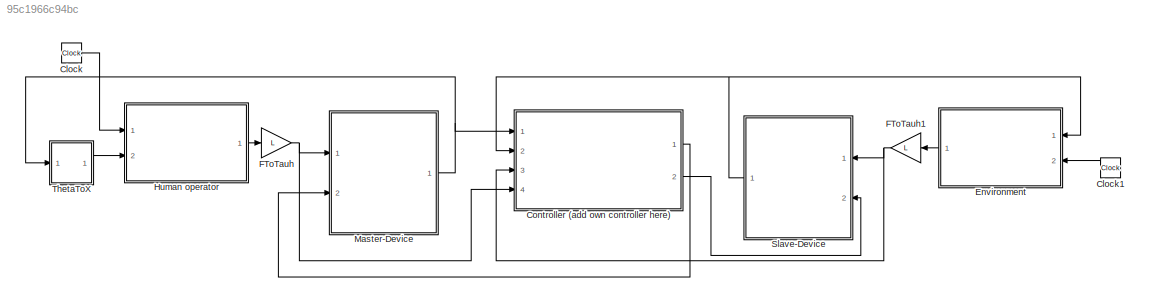
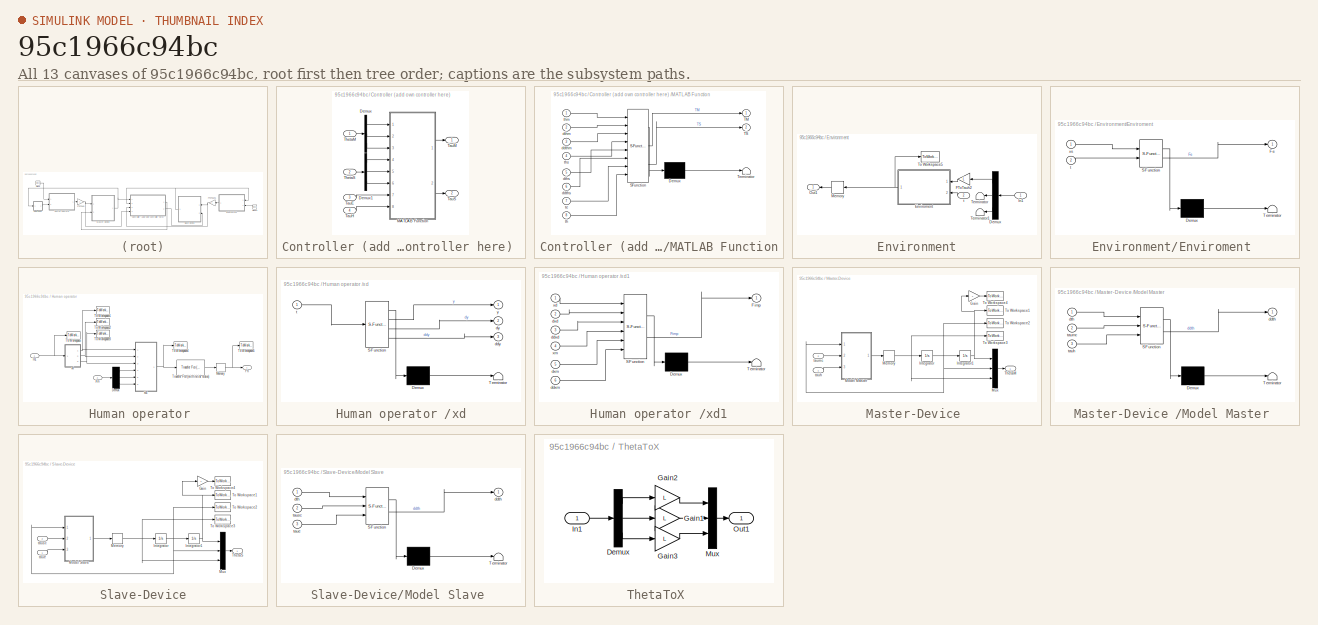
[diagram: thumbnail index - all 13 canvases of the model, root first then tree order]
MODEL slx_95c1966c94bc
KIND model
CONFIG AbsTol = auto
CONFIG EnableMultiTasking = off
CONFIG FixedStep = dt
CONFIG MaxStep = auto
CONFIG MinStep = auto
CONFIG RelTol = 1e-3
CONFIG SampleTimeConstraint = Unconstrained
CONFIG Solver = ode4
CONFIG SolverName = ode4
CONFIG StartTime = 0.0
CONFIG StopTime = tsim
BLOCK [Clock] Clock
BLOCK [Clock] Clock1
BLOCK [SubSystem] Controller (add own controller here) 
  Ports = [4, 2]
  RequestExecContextInheritance = off
BLOCK [Demux] Controller (add own controller here) /Demux
  Outputs = 3
  Ports = [1, 3]
BLOCK [Demux] Controller (add own controller here) /Demux1
  Outputs = 3
  Ports = [1, 3]
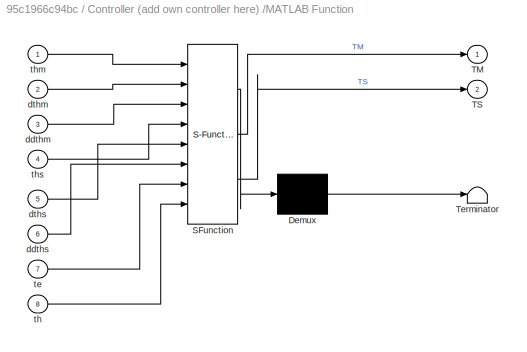
BLOCK [SubSystem] Controller (add own controller here) /MATLAB Function
  ErrorFcn = Stateflow.Translate.translate
  PermitHierarchicalResolution = ExplicitOnly
  Ports = [8, 2]
  RequestExecContextInheritance = off
  SFBlockType = MATLAB Function
  TreatAsAtomicUnit = on
BLOCK [Demux] Controller (add own controller here) /MATLAB Function/ Demux 
  Outputs = 1
  Ports = [1, 1]
BLOCK [S-Function] Controller (add own controller here) /MATLAB Function/ SFunction 
  EnableBusSupport = on
  FunctionName = sf_sfun
  Parameters = Kd,Kp,OPTION
  PortCounts = [8 3]
  Ports = [8, 3]
  SFcnIsStateOwnerBlock = off
  SFunctionDeploymentMode = off
  Tag = Stateflow S-Function 6
BLOCK [Terminator] Controller (add own controller here) /MATLAB Function/ Terminator 
BLOCK [Outport] Controller (add own controller here) /MATLAB Function/TM
  VectorParamsAs1DForOutWhenUnconnected = off
BLOCK [Outport] Controller (add own controller here) /MATLAB Function/TS
  Port = 2
  VectorParamsAs1DForOutWhenUnconnected = off
BLOCK [Inport] Controller (add own controller here) /MATLAB Function/ddthm
  Port = 3
BLOCK [Inport] Controller (add own controller here) /MATLAB Function/ddths
  Port = 6
BLOCK [Inport] Controller (add own controller here) /MATLAB Function/dthm
  Port = 2
BLOCK [Inport] Controller (add own controller here) /MATLAB Function/dths
  Port = 5
BLOCK [Inport] Controller (add own controller here) /MATLAB Function/te
  Port = 7
BLOCK [Inport] Controller (add own controller here) /MATLAB Function/th
  Port = 8
BLOCK [Inport] Controller (add own controller here) /MATLAB Function/thm
BLOCK [Inport] Controller (add own controller here) /MATLAB Function/ths
  Port = 4
BLOCK [Inport] Controller (add own controller here) /TauE 
  Port = 3
BLOCK [Inport] Controller (add own controller here) /TauH 
  Port = 4
BLOCK [Outport] Controller (add own controller here) /TauM
  VectorParamsAs1DForOutWhenUnconnected = off
BLOCK [Outport] Controller (add own controller here) /TauS 
  Port = 2
  VectorParamsAs1DForOutWhenUnconnected = off
BLOCK [Inport] Controller (add own controller here) /ThetaM 
BLOCK [Inport] Controller (add own controller here) /ThetaS 
  Port = 2
BLOCK [SubSystem] Environment
  Ports = [2, 1]
  RequestExecContextInheritance = off
BLOCK [Demux] Environment/Demux
  Outputs = 3
  Ports = [1, 3]
BLOCK [SubSystem] Environment/Enviroment 
  ErrorFcn = Stateflow.Translate.translate
  PermitHierarchicalResolution = ExplicitOnly
  Ports = [2, 1]
  RequestExecContextInheritance = off
  SFBlockType = MATLAB Function
  TreatAsAtomicUnit = on
BLOCK [Demux] Environment/Enviroment / Demux 
  Outputs = 1
  Ports = [1, 1]
BLOCK [S-Function] Environment/Enviroment / SFunction 
  EnableBusSupport = on
  FunctionName = sf_sfun
  Parameters = ke
  PortCounts = [2 2]
  Ports = [2, 2]
  SFcnIsStateOwnerBlock = off
  SFunctionDeploymentMode = off
  Tag = Stateflow S-Function 5
BLOCK [Terminator] Environment/Enviroment / Terminator 
BLOCK [Outport] Environment/Enviroment /Fe
  VectorParamsAs1DForOutWhenUnconnected = off
BLOCK [Inport] Environment/Enviroment /t
  Port = 2
BLOCK [Inport] Environment/Enviroment /xs
BLOCK [Gain] Environment/FToTauh2
  Gain = L
BLOCK [Inport] Environment/In1
BLOCK [Memory] Environment/Memory
BLOCK [Outport] Environment/Out1
  VectorParamsAs1DForOutWhenUnconnected = off
BLOCK [Terminator] Environment/Terminator
BLOCK [Terminator] Environment/Terminator1
BLOCK [ToWorkspace] Environment/To Workspace5
  FixptAsFi = on
  MaxDataPoints = inf
  Ports = [1]
  SampleTime = -1
  VariableName = Fe
BLOCK [Inport] Environment/t
  Port = 2
BLOCK [Gain] FToTauh
  Gain = L
BLOCK [Gain] FToTauh1
  Gain = L
BLOCK [SubSystem] Human operator 
  Ports = [2, 1]
  RequestExecContextInheritance = off
BLOCK [Demux] Human operator /Demux
  Outputs = 3
  Ports = [1, 3]
BLOCK [Outport] Human operator /Fh 
  VectorParamsAs1DForOutWhenUnconnected = off
BLOCK [Inport] Human operator /In1
BLOCK [Memory] Human operator /Memory
BLOCK [ToWorkspace] Human operator /To Workspace
  FixptAsFi = on
  MaxDataPoints = inf
  Ports = [1]
  SampleTime = -1
  VariableName = t
BLOCK [ToWorkspace] Human operator /To Workspace1
  FixptAsFi = on
  MaxDataPoints = inf
  Ports = [1]
  SampleTime = -1
  VariableName = xd
BLOCK [ToWorkspace] Human operator /To Workspace2
  FixptAsFi = on
  MaxDataPoints = inf
  Ports = [1]
  SampleTime = -1
  VariableName = dxd
BLOCK [ToWorkspace] Human operator /To Workspace3
  FixptAsFi = on
  MaxDataPoints = inf
  Ports = [1]
  SampleTime = -1
  VariableName = ddxd
BLOCK [ToWorkspace] Human operator /To Workspace4
  FixptAsFi = on
  MaxDataPoints = inf
  Ports = [1]
  SampleTime = -1
  VariableName = Fimp
BLOCK [ToWorkspace] Human operator /To Workspace5
  FixptAsFi = on
  MaxDataPoints = inf
  Ports = [1]
  SampleTime = -1
  VariableName = Fh
BLOCK [Reference] Human operator /Transfer Fcn (with initial states)  REF=simulink_extras/Additional
Linear/Transfer Fcn
(with initial states)
  Ports = [1, 1]
  SourceBlock = simulink_extras/Additional\nLinear/Transfer Fcn\n(with initial states)
  SourceProductBaseCode = SL
  SourceType = Transfer Function with Initial States
BLOCK [Inport] Human operator /Xm 
  Port = 2
BLOCK [SubSystem] Human operator /xd
  ErrorFcn = Stateflow.Translate.translate
  PermitHierarchicalResolution = ExplicitOnly
  Ports = [1, 3]
  RequestExecContextInheritance = off
  SFBlockType = MATLAB Function
  TreatAsAtomicUnit = on
BLOCK [Demux] Human operator /xd/ Demux 
  Outputs = 1
  Ports = [1, 1]
BLOCK [S-Function] Human operator /xd/ SFunction 
  EnableBusSupport = on
  FunctionName = sf_sfun
  PortCounts = [1 4]
  Ports = [1, 4]
  SFcnIsStateOwnerBlock = off
  SFunctionDeploymentMode = off
  Tag = Stateflow S-Function 2
BLOCK [Terminator] Human operator /xd/ Terminator 
BLOCK [Outport] Human operator /xd/ddy
  Port = 3
  VectorParamsAs1DForOutWhenUnconnected = off
BLOCK [Outport] Human operator /xd/dy
  Port = 2
  VectorParamsAs1DForOutWhenUnconnected = off
BLOCK [Inport] Human operator /xd/t
BLOCK [Outport] Human operator /xd/y
  VectorParamsAs1DForOutWhenUnconnected = off
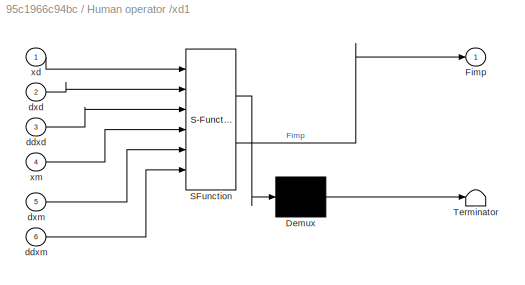
BLOCK [SubSystem] Human operator /xd1
  ErrorFcn = Stateflow.Translate.translate
  PermitHierarchicalResolution = ExplicitOnly
  Ports = [6, 1]
  RequestExecContextInheritance = off
  SFBlockType = MATLAB Function
  TreatAsAtomicUnit = on
BLOCK [Demux] Human operator /xd1/ Demux 
  Outputs = 1
  Ports = [1, 1]
BLOCK [S-Function] Human operator /xd1/ SFunction 
  EnableBusSupport = on
  FunctionName = sf_sfun
  Parameters = bh,kh,mh
  PortCounts = [6 2]
  Ports = [6, 2]
  SFcnIsStateOwnerBlock = off
  SFunctionDeploymentMode = off
  Tag = Stateflow S-Function 1
BLOCK [Terminator] Human operator /xd1/ Terminator 
BLOCK [Outport] Human operator /xd1/Fimp
  VectorParamsAs1DForOutWhenUnconnected = off
BLOCK [Inport] Human operator /xd1/ddxd
  Port = 3
BLOCK [Inport] Human operator /xd1/ddxm
  Port = 6
BLOCK [Inport] Human operator /xd1/dxd
  Port = 2
BLOCK [Inport] Human operator /xd1/dxm
  Port = 5
BLOCK [Inport] Human operator /xd1/xd
BLOCK [Inport] Human operator /xd1/xm
  Port = 4
BLOCK [SubSystem] Master-Device 
  Ports = [2, 1]
  RequestExecContextInheritance = off
BLOCK [Gain] Master-Device /Gain
  Gain = L
BLOCK [Integrator] Master-Device /Integrator
  Ports = [1, 1]
BLOCK [Integrator] Master-Device /Integrator1
  Ports = [1, 1]
BLOCK [Memory] Master-Device /Memory
BLOCK [SubSystem] Master-Device /Model Master 
  ErrorFcn = Stateflow.Translate.translate
  PermitHierarchicalResolution = ExplicitOnly
  Ports = [3, 1]
  RequestExecContextInheritance = off
  SFBlockType = MATLAB Function
  TreatAsAtomicUnit = on
BLOCK [Demux] Master-Device /Model Master / Demux 
  Outputs = 1
  Ports = [1, 1]
BLOCK [S-Function] Master-Device /Model Master / SFunction 
  EnableBusSupport = on
  FunctionName = sf_sfun
  Parameters = Bm,Im
  PortCounts = [3 2]
  Ports = [3, 2]
  SFcnIsStateOwnerBlock = off
  SFunctionDeploymentMode = off
  Tag = Stateflow S-Function 3
BLOCK [Terminator] Master-Device /Model Master / Terminator 
BLOCK [Outport] Master-Device /Model Master /ddth
  VectorParamsAs1DForOutWhenUnconnected = off
BLOCK [Inport] Master-Device /Model Master /dth
BLOCK [Inport] Master-Device /Model Master /tauh
  Port = 3
BLOCK [Inport] Master-Device /Model Master /taumc
  Port = 2
BLOCK [Mux] Master-Device /Mux
  DisplayOption = bar
  Inputs = 3
  Ports = [3, 1]
BLOCK [Outport] Master-Device /ThetaM 
  VectorParamsAs1DForOutWhenUnconnected = off
BLOCK [ToWorkspace] Master-Device /To Workspace1
  FixptAsFi = on
  MaxDataPoints = inf
  Ports = [1]
  SampleTime = -1
  VariableName = thm
BLOCK [ToWorkspace] Master-Device /To Workspace2
  FixptAsFi = on
  MaxDataPoints = inf
  Ports = [1]
  SampleTime = -1
  VariableName = dthm
BLOCK [ToWorkspace] Master-Device /To Workspace3
  FixptAsFi = on
  MaxDataPoints = inf
  Ports = [1]
  SampleTime = -1
  VariableName = ddthm
BLOCK [ToWorkspace] Master-Device /To Workspace4
  FixptAsFi = on
  MaxDataPoints = inf
  Ports = [1]
  SampleTime = -1
  VariableName = xm
BLOCK [Inport] Master-Device /tauh 
BLOCK [Inport] Master-Device /taumc 
  Port = 2
BLOCK [SubSystem] Slave-Device
  Ports = [2, 1]
  RequestExecContextInheritance = off
BLOCK [Gain] Slave-Device/Gain
  Gain = L
BLOCK [Integrator] Slave-Device/Integrator
  Ports = [1, 1]
BLOCK [Integrator] Slave-Device/Integrator1
  Ports = [1, 1]
BLOCK [Memory] Slave-Device/Memory
BLOCK [SubSystem] Slave-Device/Model Slave 
  ErrorFcn = Stateflow.Translate.translate
  PermitHierarchicalResolution = ExplicitOnly
  Ports = [3, 1]
  RequestExecContextInheritance = off
  SFBlockType = MATLAB Function
  TreatAsAtomicUnit = on
BLOCK [Demux] Slave-Device/Model Slave / Demux 
  Outputs = 1
  Ports = [1, 1]
BLOCK [S-Function] Slave-Device/Model Slave / SFunction 
  EnableBusSupport = on
  FunctionName = sf_sfun
  Parameters = Bs,Is
  PortCounts = [3 2]
  Ports = [3, 2]
  SFcnIsStateOwnerBlock = off
  SFunctionDeploymentMode = off
  Tag = Stateflow S-Function 4
BLOCK [Terminator] Slave-Device/Model Slave / Terminator 
BLOCK [Outport] Slave-Device/Model Slave /ddth
  VectorParamsAs1DForOutWhenUnconnected = off
BLOCK [Inport] Slave-Device/Model Slave /dth
BLOCK [Inport] Slave-Device/Model Slave /taue
  Port = 3
BLOCK [Inport] Slave-Device/Model Slave /tausc
  Port = 2
BLOCK [Mux] Slave-Device/Mux
  DisplayOption = bar
  Inputs = 3
  Ports = [3, 1]
BLOCK [Outport] Slave-Device/ThetaS 
  VectorParamsAs1DForOutWhenUnconnected = off
BLOCK [ToWorkspace] Slave-Device/To Workspace1
  FixptAsFi = on
  MaxDataPoints = inf
  Ports = [1]
  SampleTime = -1
  VariableName = ths
BLOCK [ToWorkspace] Slave-Device/To Workspace2
  FixptAsFi = on
  MaxDataPoints = inf
  Ports = [1]
  SampleTime = -1
  VariableName = dths
BLOCK [ToWorkspace] Slave-Device/To Workspace3
  FixptAsFi = on
  MaxDataPoints = inf
  Ports = [1]
  SampleTime = -1
  VariableName = ddths
BLOCK [ToWorkspace] Slave-Device/To Workspace4
  FixptAsFi = on
  MaxDataPoints = inf
  Ports = [1]
  SampleTime = -1
  VariableName = xs
BLOCK [Inport] Slave-Device/taue 
BLOCK [Inport] Slave-Device/tausc 
  Port = 2
BLOCK [SubSystem] ThetaToX 
  Ports = [1, 1]
  RequestExecContextInheritance = off
BLOCK [Demux] ThetaToX /Demux
  Outputs = 3
  Ports = [1, 3]
BLOCK [Gain] ThetaToX /Gain1
  Gain = L
BLOCK [Gain] ThetaToX /Gain2
  Gain = L
BLOCK [Gain] ThetaToX /Gain3
  Gain = L
BLOCK [Inport] ThetaToX /In1
BLOCK [Mux] ThetaToX /Mux
  DisplayOption = bar
  Inputs = 3
  Ports = [3, 1]
BLOCK [Outport] ThetaToX /Out1
  VectorParamsAs1DForOutWhenUnconnected = off
LINE Clock1:1 -> Environment:2
LINE Clock:1 -> Human operator :1
LINE Controller (add own controller here) /Demux1:1 -> Controller (add own controller here) /MATLAB Function:4
LINE Controller (add own controller here) /Demux1:2 -> Controller (add own controller here) /MATLAB Function:5
LINE Controller (add own controller here) /Demux1:3 -> Controller (add own controller here) /MATLAB Function:6
LINE Controller (add own controller here) /Demux:1 -> Controller (add own controller here) /MATLAB Function:1
LINE Controller (add own controller here) /Demux:2 -> Controller (add own controller here) /MATLAB Function:2
LINE Controller (add own controller here) /Demux:3 -> Controller (add own controller here) /MATLAB Function:3
LINE Controller (add own controller here) /MATLAB Function:1 -> Controller (add own controller here) /TauM:1
LINE Controller (add own controller here) /MATLAB Function:2 -> Controller (add own controller here) /TauS :1
LINE Controller (add own controller here) /TauE :1 -> Controller (add own controller here) /MATLAB Function:7
LINE Controller (add own controller here) /TauH :1 -> Controller (add own controller here) /MATLAB Function:8
LINE Controller (add own controller here) /ThetaM :1 -> Controller (add own controller here) /Demux:1
LINE Controller (add own controller here) /ThetaS :1 -> Controller (add own controller here) /Demux1:1
LINE Controller (add own controller here) :1 -> Master-Device :2
LINE Controller (add own controller here) :2 -> Slave-Device:2
LINE Environment/Demux:1 -> Environment/FToTauh2:1
LINE Environment/Demux:2 -> Environment/Terminator:1
LINE Environment/Demux:3 -> Environment/Terminator1:1
NET Environment/Enviroment :1 -> Environment/Memory:1, Environment/To Workspace5:1
LINE Environment/FToTauh2:1 -> Environment/Enviroment :1
LINE Environment/In1:1 -> Environment/Demux:1
LINE Environment/Memory:1 -> Environment/Out1:1
LINE Environment/t:1 -> Environment/Enviroment :2
LINE Environment:1 -> FToTauh1:1
NET FToTauh1:1 -> Controller (add own controller here) :3, Slave-Device:1
NET FToTauh:1 -> Controller (add own controller here) :4, Master-Device :1
LINE Human operator /Demux:1 -> Human operator /xd1:4
LINE Human operator /Demux:2 -> Human operator /xd1:5
LINE Human operator /Demux:3 -> Human operator /xd1:6
NET Human operator /In1:1 -> Human operator /To Workspace:1, Human operator /xd:1
NET Human operator /Memory:1 -> Human operator /Fh :1, Human operator /To Workspace5:1
LINE Human operator /Transfer Fcn (with initial states):1 -> Human operator /Memory:1
LINE Human operator /Xm :1 -> Human operator /Demux:1
NET Human operator /xd1:1 -> Human operator /To Workspace4:1, Human operator /Transfer Fcn (with initial states):1
NET Human operator /xd:1 -> Human operator /To Workspace1:1, Human operator /xd1:1
NET Human operator /xd:2 -> Human operator /To Workspace2:1, Human operator /xd1:2
NET Human operator /xd:3 -> Human operator /To Workspace3:1, Human operator /xd1:3
LINE Human operator :1 -> FToTauh:1
LINE Master-Device /Gain:1 -> Master-Device /To Workspace4:1
NET Master-Device /Integrator1:1 -> Master-Device /Gain:1, Master-Device /Mux:1, Master-Device /To Workspace1:1
NET Master-Device /Integrator:1 -> Master-Device /Integrator1:1, Master-Device /Model Master :1, Master-Device /Mux:2, Master-Device /To Workspace2:1
NET Master-Device /Memory:1 -> Master-Device /Integrator:1, Master-Device /Mux:3, Master-Device /To Workspace3:1
LINE Master-Device /Model Master :1 -> Master-Device /Memory:1
LINE Master-Device /Mux:1 -> Master-Device /ThetaM :1
LINE Master-Device /tauh :1 -> Master-Device /Model Master :3
LINE Master-Device /taumc :1 -> Master-Device /Model Master :2
NET Master-Device :1 -> Controller (add own controller here) :1, ThetaToX :1
LINE Slave-Device/Gain:1 -> Slave-Device/To Workspace4:1
NET Slave-Device/Integrator1:1 -> Slave-Device/Gain:1, Slave-Device/Mux:1, Slave-Device/To Workspace1:1
NET Slave-Device/Integrator:1 -> Slave-Device/Integrator1:1, Slave-Device/Model Slave :1, Slave-Device/Mux:2, Slave-Device/To Workspace2:1
NET Slave-Device/Memory:1 -> Slave-Device/Integrator:1, Slave-Device/Mux:3, Slave-Device/To Workspace3:1
LINE Slave-Device/Model Slave :1 -> Slave-Device/Memory:1
LINE Slave-Device/Mux:1 -> Slave-Device/ThetaS :1
LINE Slave-Device/taue :1 -> Slave-Device/Model Slave :3
LINE Slave-Device/tausc :1 -> Slave-Device/Model Slave :2
NET Slave-Device:1 -> Controller (add own controller here) :2, Environment:1
LINE ThetaToX /Demux:1 -> ThetaToX /Gain2:1
LINE ThetaToX /Demux:2 -> ThetaToX /Gain1:1
LINE ThetaToX /Demux:3 -> ThetaToX /Gain3:1
LINE ThetaToX /Gain1:1 -> ThetaToX /Mux:2
LINE ThetaToX /Gain2:1 -> ThetaToX /Mux:1
LINE ThetaToX /Gain3:1 -> ThetaToX /Mux:3
LINE ThetaToX /In1:1 -> ThetaToX /Demux:1
LINE ThetaToX /Mux:1 -> ThetaToX /Out1:1
LINE ThetaToX :1 -> Human operator :2
note: NET lines group one-source signal fan-out (src -> all destinations, sorted); 1:1 wires keep LINE
CHART Human operator
/xd1 states=1 transitions=1
  STATE_LABEL 'eML_blk_kernel()'
  STATE_LABEL 'SCRIPT:\nfunction Fimp = fcn(xd,dxd,ddxd,xm,dxm,ddxm,mh,bh,kh)\nFimp = kh*(xd-xm) + bh*(dxd-dxm) + mh*(ddxd - ddxm);\nend'
CHART Human operator
/xd states=1 transitions=1
  STATE_LABEL 'eML_blk_kernel()'
  STATE_LABEL 'SCRIPT:\nfunction [y,dy,ddy] = fcn(t)\ny   = -0.015*sin(0.75*pi*t) -0.03*sin(0.25*pi*t);\ndy  = - (3*pi*cos((pi*t)/4))/400 - (9*pi*cos((3*pi*t)/4))/800;\nddy = (3*pi^2*sin((pi*t)/4))/1600 + (27*pi^2*sin((3*pi*t)/4))/3200;\n'
CHART Master-Device
/Model Master
 states=1 transitions=1
  STATE_LABEL 'eML_blk_kernel()'
  STATE_LABEL 'SCRIPT:\nfunction ddth = fcn(dth,taumc,tauh,Im,Bm)\n\nddth = (1/Im)*(tauh + taumc - Bm*dth);\n\nend\n'
CHART Slave-Device/Model Slave
 states=1 transitions=1
  STATE_LABEL 'eML_blk_kernel()'
  STATE_LABEL 'SCRIPT:\nfunction ddth = fcn(dth,tausc,taue,Is,Bs)\nddth = (1/Is)*(-taue + tausc - Bs*dth);\nend\n'
CHART Environment/Enviroment
 states=1 transitions=1
  STATE_LABEL 'eML_blk_kernel()'
  STATE_LABEL 'SCRIPT:\nfunction Fe = fcn(xs,ke,t)\nif(xs <= 0), Fe = 0;\nelse, Fe = ke*xs;\nend\n'
CHART Controller (add own controller here)
/MATLAB Function states=1 transitions=1
  STATE_LABEL 'eML_blk_kernel()'
  STATE_LABEL 'SCRIPT:\nfunction [TM,TS] = fcn(thm,dthm,ddthm,ths,dths,ddths,te,th,Kd,Kp,OPTION)\n%\n% TELE-OPERATOR CONTROLLERS: YOU CAN ADD YOUR OWN BY \n% BY ADDING TO THE IF-CONDITION:\n%\n% elseif(OPTION == 4)\n%   TM = ?????   // torque on master device\n%   TS = ?????   // torque on slave device\n% \n%\n\nif(OPTION == 1)\n    TM = Kp*(ths-thm) + Kd*(dths-dthm);\n    TS = Kp*(thm-ths) + Kd*(dthm-dths);\nelseif(OPTION == ...<+143ch>'
CHART  states=0 transitions=0
CHART  states=0 transitions=0
CHART  states=0 transitions=0
CHART  states=0 transitions=0
CHART  states=0 transitions=0
CHART  states=0 transitions=0
